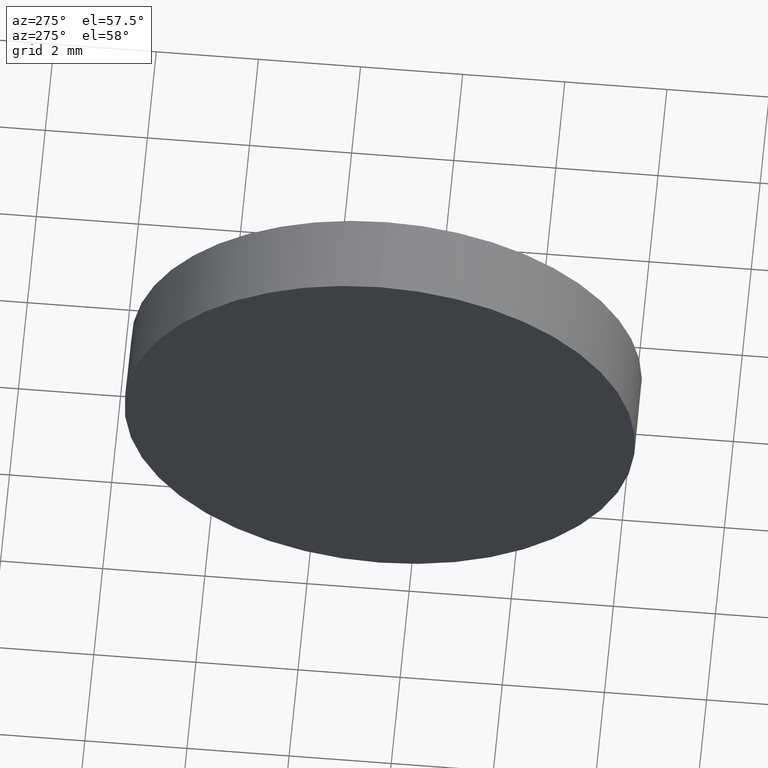
[diagram: clean part render]
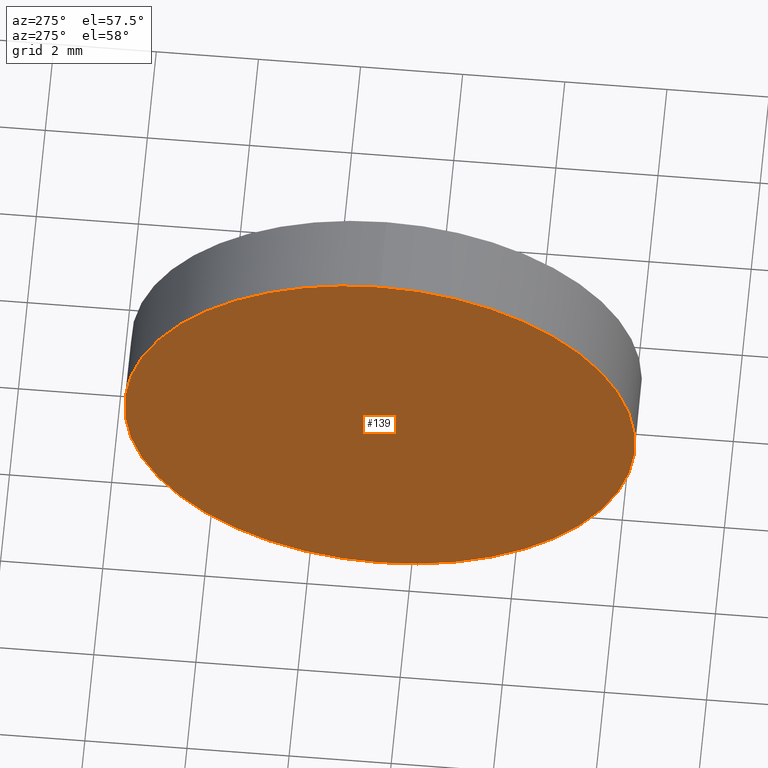
[diagram: same view with one face highlighted and labeled with its STEP entity id]
A machine part, auxiliary view. The second image highlights one B-rep face of the part: STEP entity #139.
In plain terms, the highlighted planar face has unit normal (1, 0, 0).
Its self-contained STEP definition (entity closure, byte-faithful):
#2 = DIRECTION ( 'NONE',  ( 0.0000000000000000000, 0.0000000000000000000, -1.000000000000000000 ) ) ;
#9 = VERTEX_POINT ( 'NONE', #60 ) ;
#11 = VERTEX_POINT ( 'NONE', #178 ) ;
#17 = CIRCLE ( 'NONE', #95, 4.999999999999997300 ) ;
#48 = DIRECTION ( 'NONE',  ( 1.000000000000000000, 0.0000000000000000000, 0.0000000000000000000 ) ) ;
#55 = AXIS2_PLACEMENT_3D ( 'NONE', #143, #48, #2 ) ;
#60 = CARTESIAN_POINT ( 'NONE',  ( 410.4723846584040500, 38.61574357864396500, 4.999999999999997300 ) ) ;
#62 = DIRECTION ( 'NONE',  ( 0.0000000000000000000, 0.0000000000000000000, 1.000000000000000000 ) ) ;
#63 = CARTESIAN_POINT ( 'NONE',  ( 410.4723846584040500, 38.61574357864396500, 0.0000000000000000000 ) ) ;
#77 = PLANE ( 'NONE',  #55 ) ;
#79 = EDGE_CURVE ( 'NONE', #9, #11, #17, .T. ) ;
#80 = CIRCLE ( 'NONE', #98, 4.999999999999997300 ) ;
#95 = AXIS2_PLACEMENT_3D ( 'NONE', #151, #172, #181 ) ;
#98 = AXIS2_PLACEMENT_3D ( 'NONE', #63, #114, #62 ) ;
#113 = ORIENTED_EDGE ( 'NONE', *, *, #163, .T. ) ;
#114 = DIRECTION ( 'NONE',  ( -1.000000000000000000, -0.0000000000000000000, -0.0000000000000000000 ) ) ;
#139 = ADVANCED_FACE ( 'NONE', ( #171 ), #77, .F. ) ;
#143 = CARTESIAN_POINT ( 'NONE',  ( 410.4723846584040500, 38.61574357864396500, 0.0000000000000000000 ) ) ;
#151 = CARTESIAN_POINT ( 'NONE',  ( 410.4723846584040500, 38.61574357864396500, 0.0000000000000000000 ) ) ;
#163 = EDGE_CURVE ( 'NONE', #11, #9, #80, .T. ) ;
#171 = FACE_OUTER_BOUND ( 'NONE', #176, .T. ) ;
#172 = DIRECTION ( 'NONE',  ( -1.000000000000000000, -0.0000000000000000000, -0.0000000000000000000 ) ) ;
#176 = EDGE_LOOP ( 'NONE', ( #185, #113 ) ) ;
#178 = CARTESIAN_POINT ( 'NONE',  ( 410.4723846584040500, 38.61574357864396500, -4.999999999999997300 ) ) ;
#181 = DIRECTION ( 'NONE',  ( 0.0000000000000000000, 0.0000000000000000000, 1.000000000000000000 ) ) ;
#185 = ORIENTED_EDGE ( 'NONE', *, *, #79, .T. ) ;